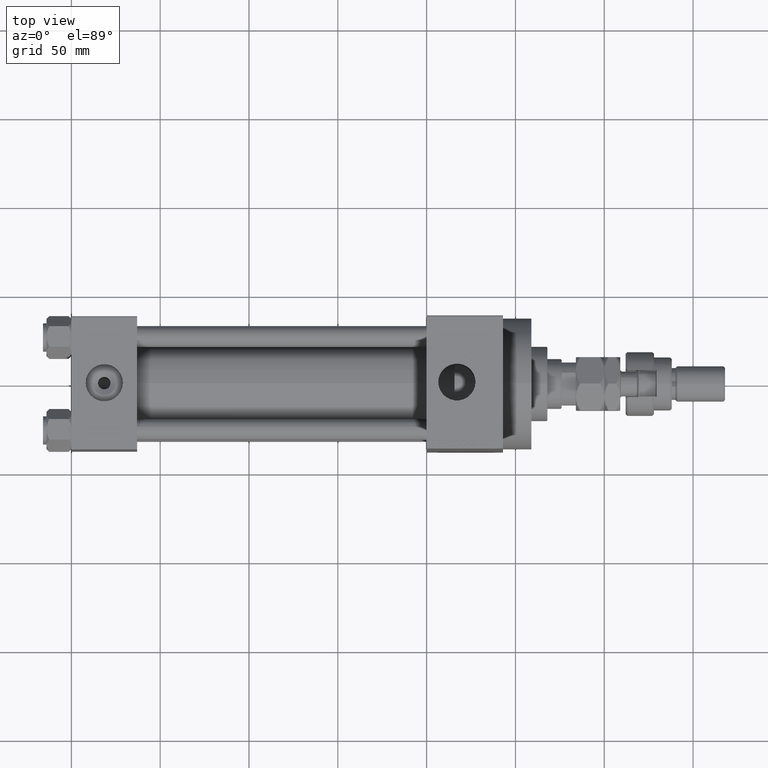
[diagram: clean part render]
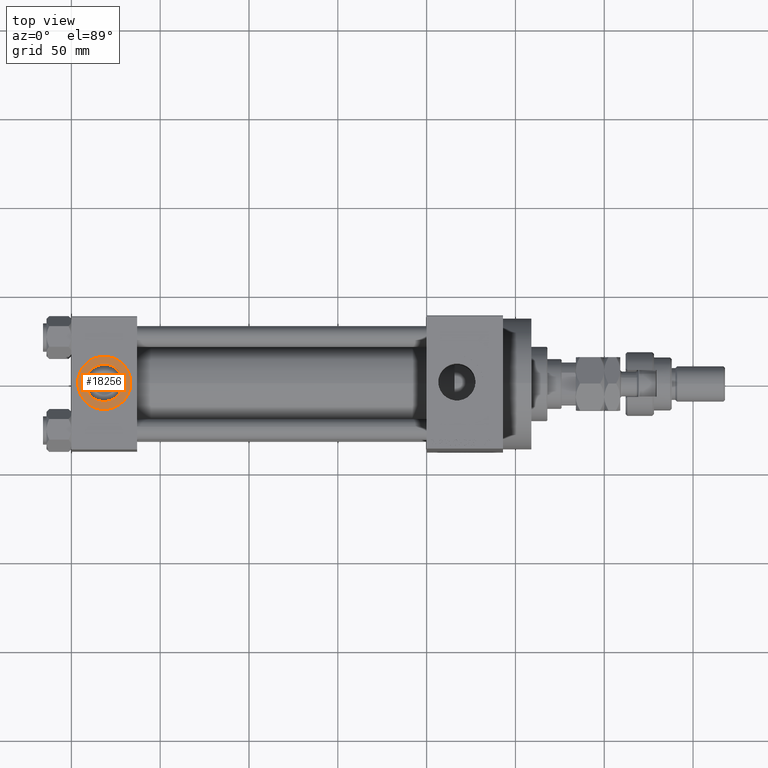
[diagram: same view with one face highlighted and labeled with its STEP entity id]
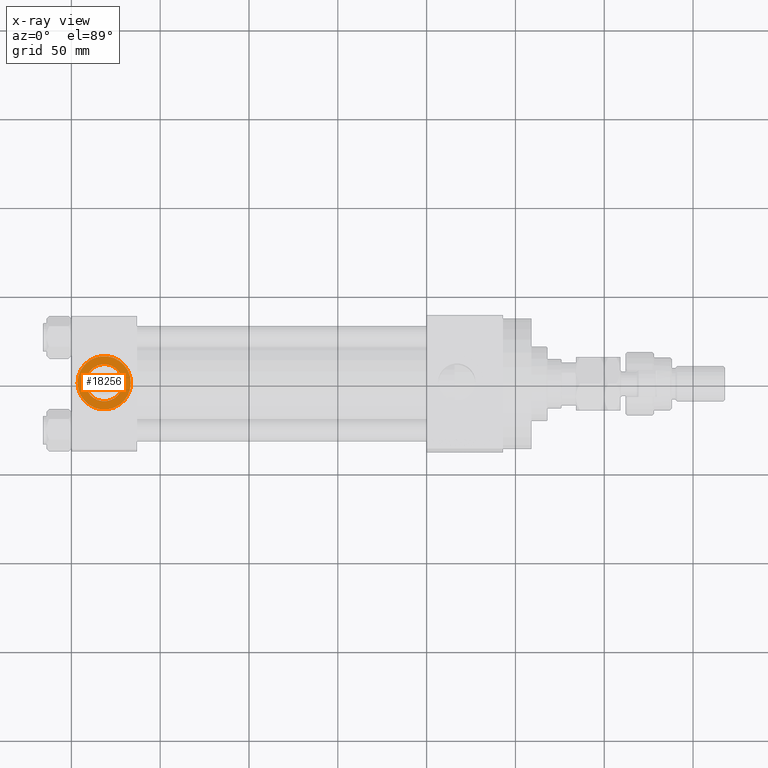
[diagram: x-ray of the same camera — body ghosted, the highlighted face saturated]
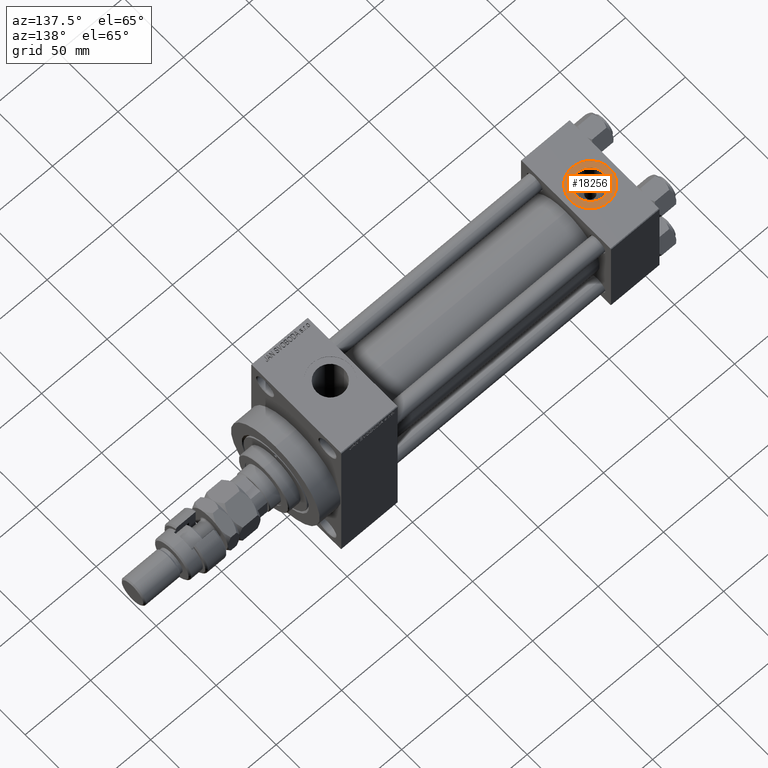
[diagram: same view with one face highlighted and labeled with its STEP entity id]
A machine part, top view. The second image highlights one B-rep face of the part: STEP entity #18256.
The next image is the same camera in x-ray: the body ghosted, the highlighted face saturated — about 0% of this face is hidden behind the body in this view.
A second angle (auxiliary view) of the same face is appended — the face is thin or edge-on in the first view.
In plain terms, the highlighted planar face has unit normal (0, 0, 1).
Its self-contained STEP definition (entity closure, byte-faithful):
#379 = FACE_OUTER_BOUND ( 'NONE', #43743, .T. ) ;
#673 = CARTESIAN_POINT ( 'NONE',  ( 33.50000000000000000, -5.204170427930421283E-15, 37.29999999999999716 ) ) ;
#3306 = AXIS2_PLACEMENT_3D ( 'NONE', #28049, #49306, #24967 ) ;
#3942 = AXIS2_PLACEMENT_3D ( 'NONE', #24875, #5344, #39658 ) ;
#4503 = VERTEX_POINT ( 'NONE', #48685 ) ;
#5344 = DIRECTION ( 'NONE',  ( 0.000000000000000000, 0.000000000000000000, 1.000000000000000000 ) ) ;
#6418 = ORIENTED_EDGE ( 'NONE', *, *, #49996, .F. ) ;
#11586 = AXIS2_PLACEMENT_3D ( 'NONE', #40003, #16849, #47895 ) ;
#12117 = ORIENTED_EDGE ( 'NONE', *, *, #23333, .T. ) ;
#12171 = VERTEX_POINT ( 'NONE', #673 ) ;
#14206 = ORIENTED_EDGE ( 'NONE', *, *, #39448, .T. ) ;
#15803 = EDGE_LOOP ( 'NONE', ( #28209, #6418 ) ) ;
#15981 = DIRECTION ( 'NONE',  ( 1.000000000000000000, 0.000000000000000000, 0.000000000000000000 ) ) ;
#16849 = DIRECTION ( 'NONE',  ( 0.000000000000000000, 0.000000000000000000, 1.000000000000000000 ) ) ;
#17124 = VERTEX_POINT ( 'NONE', #27153 ) ;
#18256 = ADVANCED_FACE ( 'NONE', ( #35164, #379 ), #28302, .T. ) ;
#22858 = EDGE_CURVE ( 'NONE', #4503, #17124, #40766, .T. ) ;
#23333 = EDGE_CURVE ( 'NONE', #44930, #12171, #28606, .T. ) ;
#24875 = CARTESIAN_POINT ( 'NONE',  ( 18.50000000000000000, -5.204170427930421283E-15, 37.29999999999999716 ) ) ;
#24967 = DIRECTION ( 'NONE',  ( 1.000000000000000000, 0.000000000000000000, -0.000000000000000000 ) ) ;
#25317 = AXIS2_PLACEMENT_3D ( 'NONE', #36059, #35817, #40612 ) ;
#27153 = CARTESIAN_POINT ( 'NONE',  ( 8.019999999999999574, -3.920740582423995006E-15, 37.29999999999999716 ) ) ;
#28049 = CARTESIAN_POINT ( 'NONE',  ( 18.50000000000000000, -5.204170427930421283E-15, 37.29999999999999716 ) ) ;
#28209 = ORIENTED_EDGE ( 'NONE', *, *, #22858, .F. ) ;
#28302 = PLANE ( 'NONE',  #3306 ) ;
#28606 = CIRCLE ( 'NONE', #11586, 15.00000000000000355 ) ;
#32249 = CARTESIAN_POINT ( 'NONE',  ( 18.50000000000000000, -5.204170427930421283E-15, 37.29999999999999716 ) ) ;
#33331 = AXIS2_PLACEMENT_3D ( 'NONE', #32249, #42970, #15981 ) ;
#34156 = CIRCLE ( 'NONE', #33331, 10.48000000000000043 ) ;
#35025 = CARTESIAN_POINT ( 'NONE',  ( 3.499999999999997780, -3.367200229209391300E-15, 37.29999999999999716 ) ) ;
#35164 = FACE_BOUND ( 'NONE', #15803, .T. ) ;
#35817 = DIRECTION ( 'NONE',  ( 0.000000000000000000, 0.000000000000000000, 1.000000000000000000 ) ) ;
#36059 = CARTESIAN_POINT ( 'NONE',  ( 18.50000000000000000, -5.204170427930421283E-15, 37.29999999999999716 ) ) ;
#37199 = CIRCLE ( 'NONE', #3942, 15.00000000000000355 ) ;
#39448 = EDGE_CURVE ( 'NONE', #12171, #44930, #37199, .T. ) ;
#39658 = DIRECTION ( 'NONE',  ( 1.000000000000000000, 0.000000000000000000, 0.000000000000000000 ) ) ;
#40003 = CARTESIAN_POINT ( 'NONE',  ( 18.50000000000000000, -5.204170427930421283E-15, 37.29999999999999716 ) ) ;
#40612 = DIRECTION ( 'NONE',  ( 1.000000000000000000, 0.000000000000000000, 0.000000000000000000 ) ) ;
#40766 = CIRCLE ( 'NONE', #25317, 10.48000000000000043 ) ;
#42970 = DIRECTION ( 'NONE',  ( 0.000000000000000000, 0.000000000000000000, 1.000000000000000000 ) ) ;
#43743 = EDGE_LOOP ( 'NONE', ( #14206, #12117 ) ) ;
#44930 = VERTEX_POINT ( 'NONE', #35025 ) ;
#47895 = DIRECTION ( 'NONE',  ( 1.000000000000000000, 0.000000000000000000, 0.000000000000000000 ) ) ;
#48685 = CARTESIAN_POINT ( 'NONE',  ( 28.98000000000000043, -5.204170427930421283E-15, 37.29999999999999716 ) ) ;
#49306 = DIRECTION ( 'NONE',  ( 0.000000000000000000, 0.000000000000000000, 1.000000000000000000 ) ) ;
#49996 = EDGE_CURVE ( 'NONE', #17124, #4503, #34156, .T. ) ;